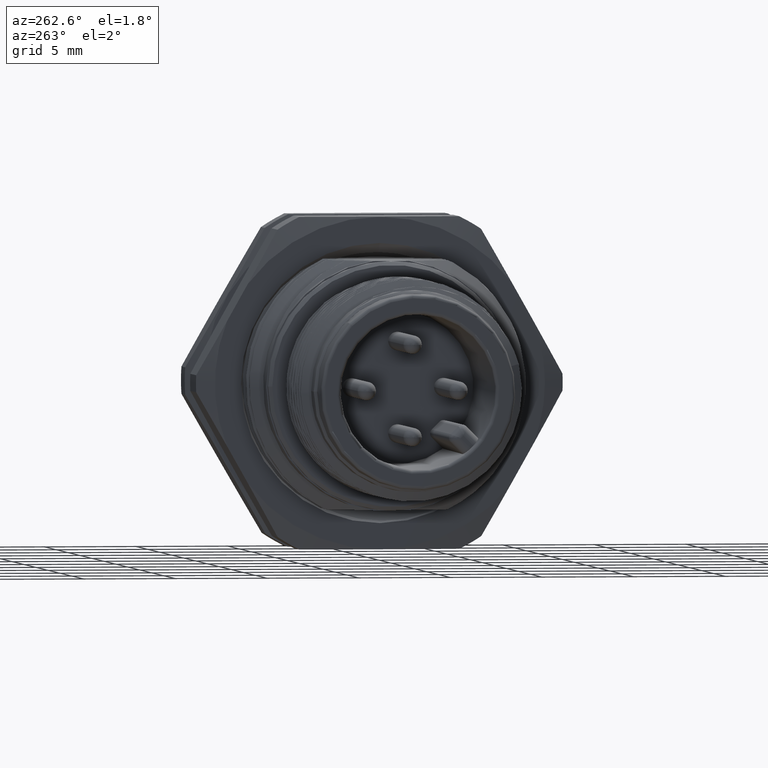
[diagram: clean part render]
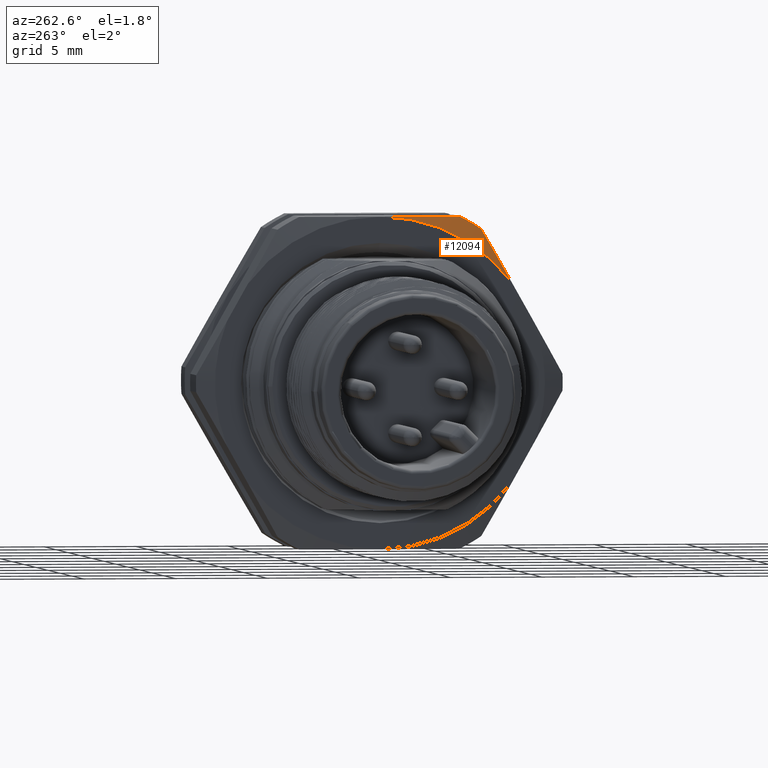
[diagram: same view with one face highlighted and labeled with its STEP entity id]
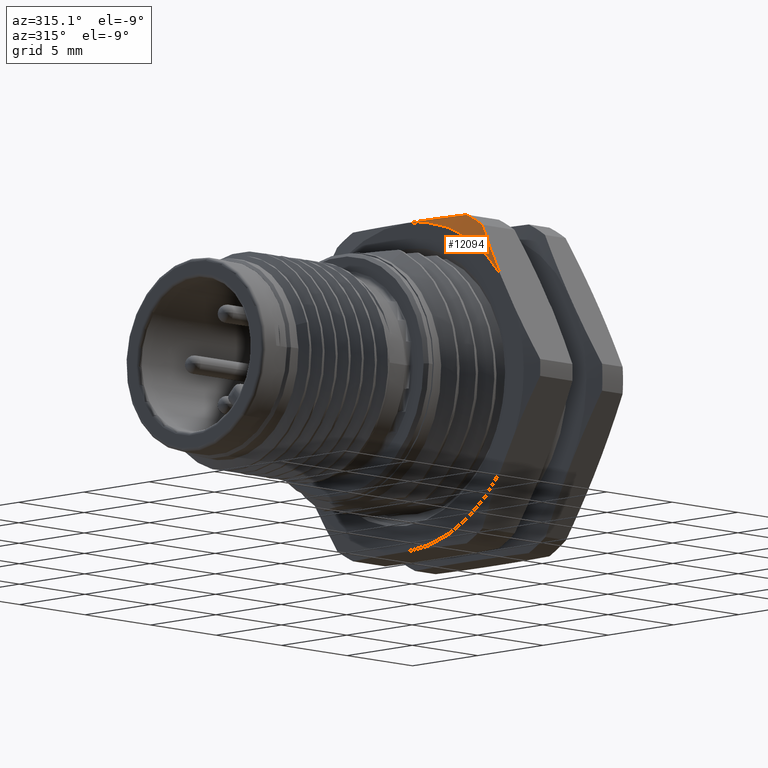
[diagram: same view with one face highlighted and labeled with its STEP entity id]
A machine part, auxiliary view. The second image highlights one B-rep face of the part: STEP entity #12094.
A second angle (auxiliary view) of the same face is appended — the face is thin or edge-on in the first view.
In plain terms, the highlighted conical surface has half-angle 75 deg.
Its self-contained STEP definition (entity closure, byte-faithful):
#2211=CARTESIAN_POINT('',(1.486794919243E1,0.E0,0.E0));
#2212=DIRECTION('',(-1.E0,0.E0,0.E0));
#2213=DIRECTION('',(0.E0,-5.548169943038E-1,8.319724171099E-1));
#2214=AXIS2_PLACEMENT_3D('',#2211,#2212,#2213);
#2258=CARTESIAN_POINT('',(1.46E1,-7.198943228787E0,5.401408741126E0));
#2259=CARTESIAN_POINT('',(1.461264914955E1,-7.018143564887E0,5.721034975358E0));
#2260=CARTESIAN_POINT('',(1.465002084008E1,-6.654861336531E0,6.363262555366E0));
#2261=CARTESIAN_POINT('',(1.473971200194E1,-6.108947431896E0,7.328355088111E0));
#2262=CARTESIAN_POINT('',(1.482181494104E1,-5.736137734493E0,7.987425780473E0));
#2263=CARTESIAN_POINT('',(1.486794919243E1,-5.548169943038E0,8.319724171099E0));
#2415=CARTESIAN_POINT('',(1.46E1,0.E0,0.E0));
#2416=DIRECTION('',(1.E0,0.E0,0.E0));
#2417=DIRECTION('',(0.E0,7.425018466172E-4,9.999997243455E-1));
#2418=AXIS2_PLACEMENT_3D('',#2415,#2416,#2417);
#2470=CARTESIAN_POINT('',(1.46E1,6.682516619556E-3,8.999997519110E0));
#2471=CARTESIAN_POINT('',(1.46E1,-3.553085596008E-1,9.000266298226E0));
#2472=CARTESIAN_POINT('',(1.461169495324E1,-1.079028710665E0,9.000803661923E0));
#2473=CARTESIAN_POINT('',(1.466412549277E1,-2.169223372306E0,9.001613133695E0));
#2474=CARTESIAN_POINT('',(1.474794666665E1,-3.247831792578E0,9.002414002660E0));
#2475=CARTESIAN_POINT('',(1.482479345704E1,-3.982719729332E0,9.002959658460E0));
#2476=CARTESIAN_POINT('',(1.486794919243E1,-4.352215225371E0,9.003234009624E0));
#9321=CARTESIAN_POINT('',(1.46E1,6.682516619557E-3,8.999997519110E0));
#9322=VERTEX_POINT('',#9321);
#9323=CARTESIAN_POINT('',(1.46E1,-7.198943228787E0,5.401408741126E0));
#9324=VERTEX_POINT('',#9323);
#9341=CARTESIAN_POINT('',(1.486794919243E1,-5.548169943038E0,8.319724171099E0));
#9342=CARTESIAN_POINT('',(1.486794919243E1,-4.352215225371E0,9.003234009624E0));
#9343=VERTEX_POINT('',#9341);
#9344=VERTEX_POINT('',#9342);
#12083=CARTESIAN_POINT('',(1.473397459621E1,0.E0,0.E0));
#12084=DIRECTION('',(1.E0,0.E0,0.E0));
#12085=DIRECTION('',(0.E0,-9.999997243455E-1,7.425018466143E-4));
#12086=AXIS2_PLACEMENT_3D('',#12083,#12084,#12085);
#12087=CONICAL_SURFACE('',#12086,9.5E0,7.499999999979E1);
#12088=ORIENTED_EDGE('',*,*,#11841,.F.);
#12089=ORIENTED_EDGE('',*,*,#11875,.F.);
#12090=ORIENTED_EDGE('',*,*,#12050,.F.);
#12091=ORIENTED_EDGE('',*,*,#11820,.T.);
#12092=EDGE_LOOP('',(#12088,#12089,#12090,#12091));
#12093=FACE_OUTER_BOUND('',#12092,.F.);
#12094=ADVANCED_FACE('',(#12093),#12087,.T.);
#2215=CIRCLE('',#2214,1.E1);
#2264=B_SPLINE_CURVE_WITH_KNOTS('',3,(#2258,#2259,#2260,#2261,#2262,#2263),
.UNSPECIFIED.,.F.,.F.,(4,1,1,4),(0.E0,3.333333333333E-1,6.666666666667E-1,1.E0),
.UNSPECIFIED.);
#2419=CIRCLE('',#2418,9.000000000001E0);
#2477=B_SPLINE_CURVE_WITH_KNOTS('',3,(#2470,#2471,#2472,#2473,#2474,#2475,
#2476),.UNSPECIFIED.,.F.,.F.,(4,1,1,1,4),(0.E0,2.5E-1,5.E-1,7.5E-1,1.E0),
.UNSPECIFIED.);
#11820=EDGE_CURVE('',#9322,#9344,#2477,.T.);
#11841=EDGE_CURVE('',#9343,#9344,#2215,.T.);
#11875=EDGE_CURVE('',#9324,#9343,#2264,.T.);
#12050=EDGE_CURVE('',#9322,#9324,#2419,.T.);